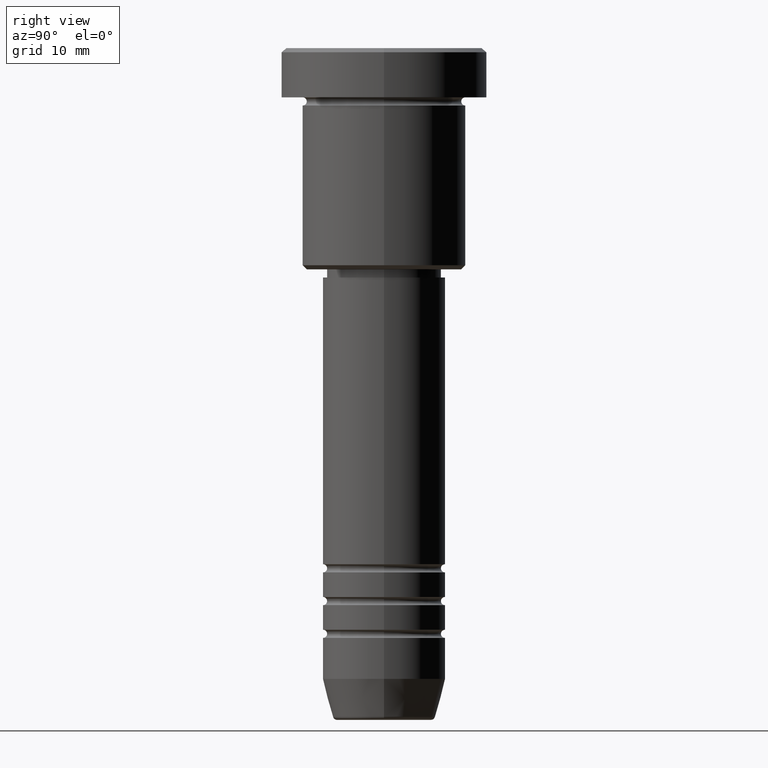
[diagram: clean part render]
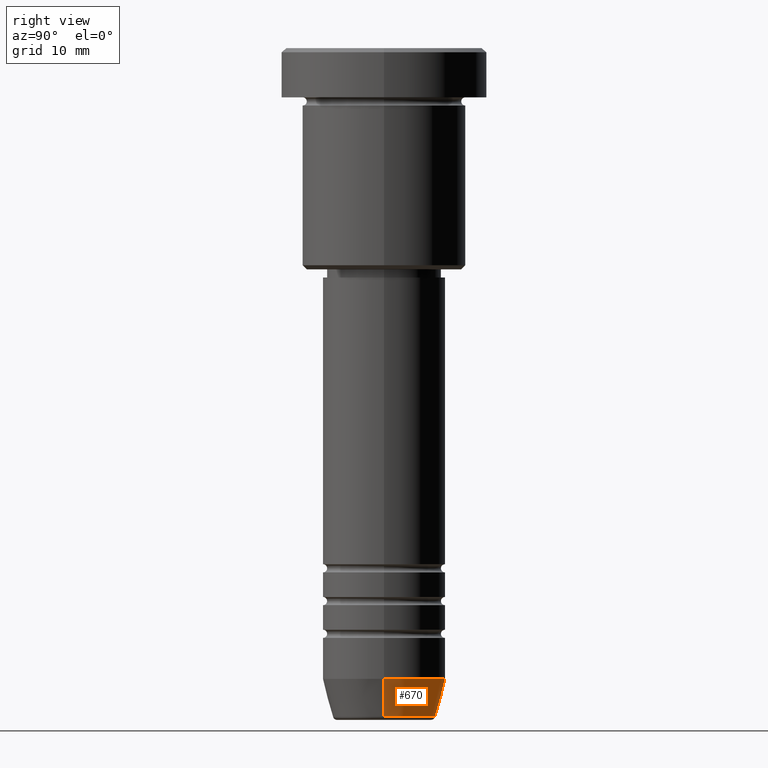
[diagram: same view with one face highlighted and labeled with its STEP entity id]
A machine part, right view. The second image highlights one B-rep face of the part: STEP entity #670.
In plain terms, the highlighted conical surface has half-angle 15 deg.
Its self-contained STEP definition (entity closure, byte-faithful):
#96 = DIRECTION ( 'NONE',  ( -0.2588190451025213501, 3.169619151431772337E-17, 0.9659258262890680902 ) ) ;
#143 = FACE_OUTER_BOUND ( 'NONE', #536, .T. ) ;
#191 = EDGE_CURVE ( 'NONE', #485, #299, #1108, .T. ) ;
#198 = EDGE_CURVE ( 'NONE', #926, #660, #279, .T. ) ;
#206 = EDGE_CURVE ( 'NONE', #485, #926, #1088, .T. ) ;
#279 = LINE ( 'NONE', #638, #405 ) ;
#282 = ORIENTED_EDGE ( 'NONE', *, *, #206, .T. ) ;
#299 = VERTEX_POINT ( 'NONE', #731 ) ;
#322 = DIRECTION ( 'NONE',  ( 1.000000000000000000, 0.000000000000000000, 0.000000000000000000 ) ) ;
#345 = DIRECTION ( 'NONE',  ( -0.000000000000000000, -0.000000000000000000, 1.000000000000000000 ) ) ;
#359 = DIRECTION ( 'NONE',  ( 1.000000000000000000, 0.000000000000000000, 0.000000000000000000 ) ) ;
#405 = VECTOR ( 'NONE', #96, 1000.000000000000000 ) ;
#436 = AXIS2_PLACEMENT_3D ( 'NONE', #851, #667, #322 ) ;
#470 = CARTESIAN_POINT ( 'NONE',  ( 0.000000000000000000, 0.000000000000000000, -81.62940952255125637 ) ) ;
#485 = VERTEX_POINT ( 'NONE', #1026 ) ;
#522 = CARTESIAN_POINT ( 'NONE',  ( 0.000000000000000000, 0.000000000000000000, -77.00000000000000000 ) ) ;
#536 = EDGE_LOOP ( 'NONE', ( #282, #882, #975, #711 ) ) ;
#559 = CARTESIAN_POINT ( 'NONE',  ( 7.500000000000000000, 0.000000000000000000, -77.00000000000000000 ) ) ;
#565 = CARTESIAN_POINT ( 'NONE',  ( -6.259553456999438659, 8.425296549405629486E-16, -81.62940952255125637 ) ) ;
#638 = CARTESIAN_POINT ( 'NONE',  ( -7.500000000000000000, 9.184850993605147944E-16, -77.00000000000000000 ) ) ;
#654 = DIRECTION ( 'NONE',  ( -0.000000000000000000, -0.000000000000000000, 1.000000000000000000 ) ) ;
#660 = VERTEX_POINT ( 'NONE', #1181 ) ;
#667 = DIRECTION ( 'NONE',  ( -0.000000000000000000, -0.000000000000000000, 1.000000000000000000 ) ) ;
#670 = ADVANCED_FACE ( 'NONE', ( #143 ), #843, .T. ) ;
#711 = ORIENTED_EDGE ( 'NONE', *, *, #191, .F. ) ;
#731 = CARTESIAN_POINT ( 'NONE',  ( 7.500000000000000000, 0.000000000000000000, -77.00000000000000000 ) ) ;
#843 = CONICAL_SURFACE ( 'NONE', #860, 7.500000000000000000, 0.2617993877991500740 ) ;
#851 = CARTESIAN_POINT ( 'NONE',  ( 0.000000000000000000, 0.000000000000000000, -77.00000000000000000 ) ) ;
#860 = AXIS2_PLACEMENT_3D ( 'NONE', #522, #345, #889 ) ;
#882 = ORIENTED_EDGE ( 'NONE', *, *, #198, .T. ) ;
#889 = DIRECTION ( 'NONE',  ( 1.000000000000000000, 0.000000000000000000, 0.000000000000000000 ) ) ;
#920 = CIRCLE ( 'NONE', #436, 7.500000000000000000 ) ;
#926 = VERTEX_POINT ( 'NONE', #565 ) ;
#928 = DIRECTION ( 'NONE',  ( 0.2588190451025213501, 0.000000000000000000, 0.9659258262890680902 ) ) ;
#946 = VECTOR ( 'NONE', #928, 1000.000000000000000 ) ;
#975 = ORIENTED_EDGE ( 'NONE', *, *, #1035, .F. ) ;
#1026 = CARTESIAN_POINT ( 'NONE',  ( 6.259553456999438659, 0.000000000000000000, -81.62940952255125637 ) ) ;
#1035 = EDGE_CURVE ( 'NONE', #299, #660, #920, .T. ) ;
#1088 = CIRCLE ( 'NONE', #1107, 6.259553456999438659 ) ;
#1107 = AXIS2_PLACEMENT_3D ( 'NONE', #470, #654, #359 ) ;
#1108 = LINE ( 'NONE', #559, #946 ) ;
#1181 = CARTESIAN_POINT ( 'NONE',  ( -7.500000000000000000, 9.184850993605147944E-16, -77.00000000000000000 ) ) ;